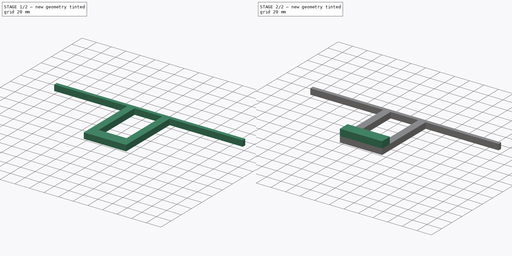
[diagram: build sequence overview — one tinted view per stage of 2, left to right]
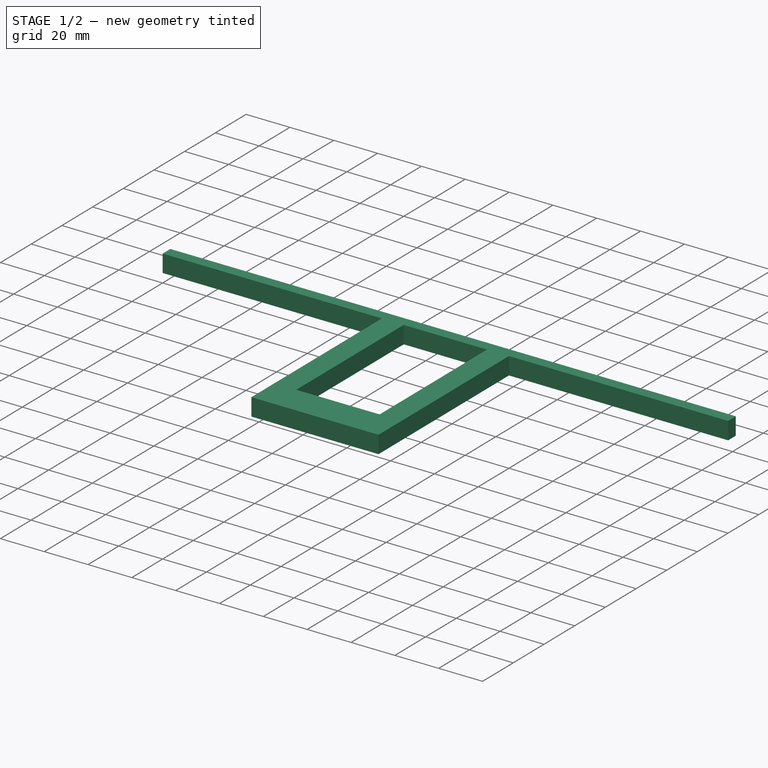
[diagram: stage 1 of 2 — iso view after this stage's code; geometry added in this stage tinted green]
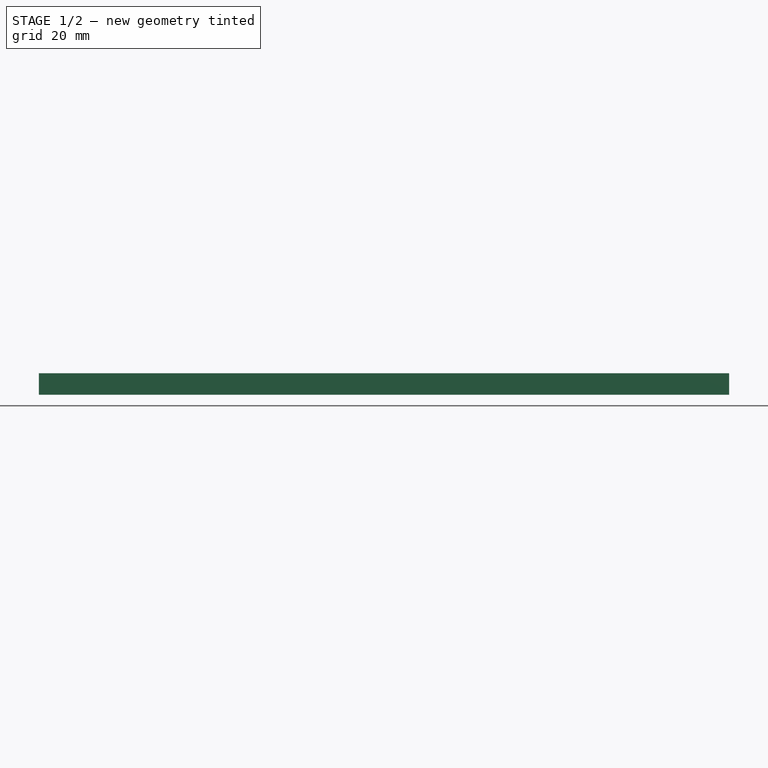
[diagram: stage 1 of 2 — front view after this stage's code; geometry added in this stage tinted green]
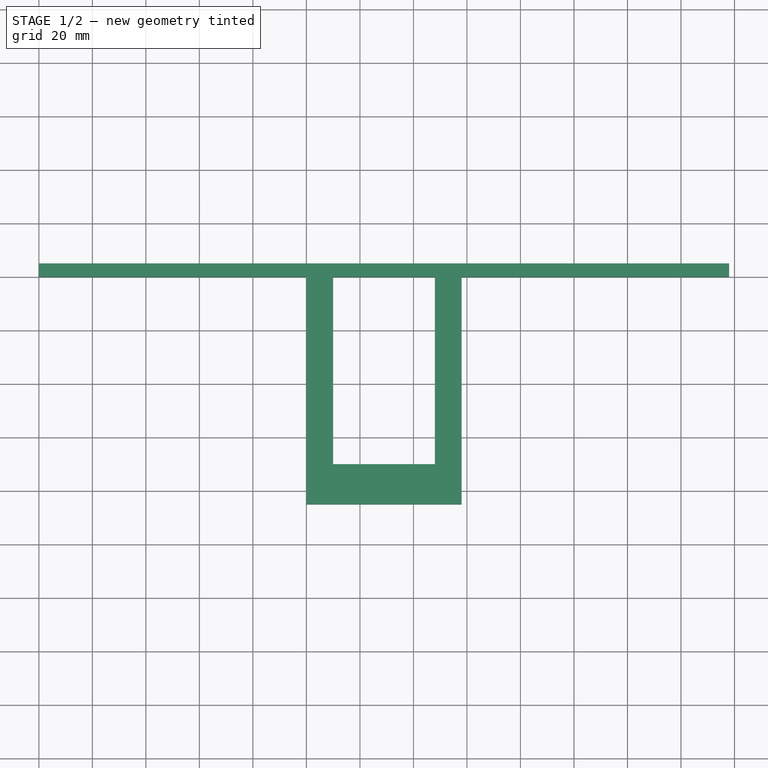
[diagram: stage 1 of 2 — top view after this stage's code; geometry added in this stage tinted green]
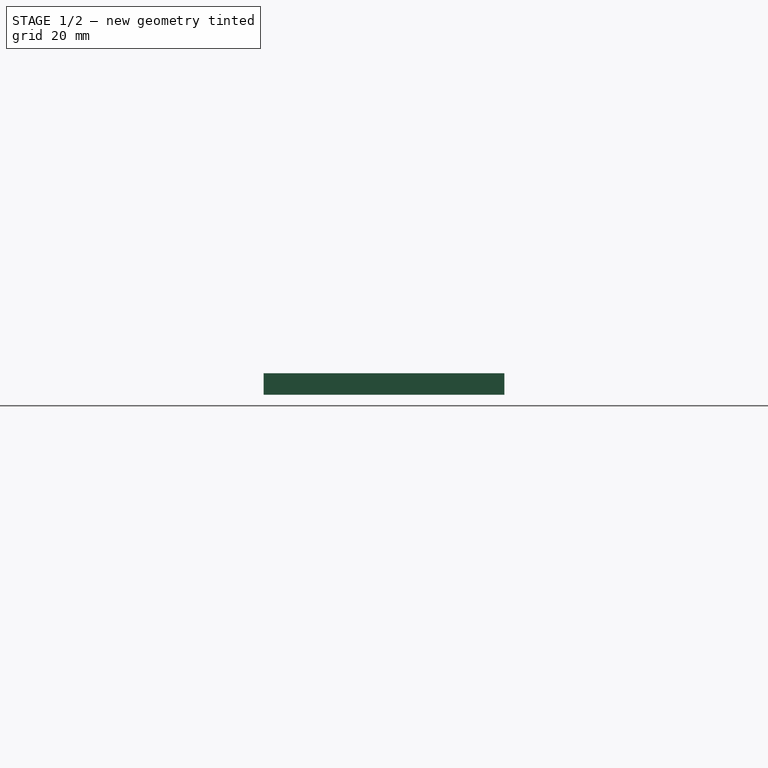
[diagram: stage 1 of 2 — right view after this stage's code; geometry added in this stage tinted green]
FCSTD DOCUMENT  (FreeCAD 0.20R29177 (Git))
Label: SolarPanelSupports_v1
License: All rights reserved
LicenseURL: http://en.wikipedia.org/wiki/All_rights_reserved
objects: Sketcher::SketchObject×2, PartDesign::Pad×2, PartDesign::Body×1, App::Part×1
note: 7 computed .brp shape members not serialized (recipe doc carries the construction recipe); baked Part::Feature solids carry a one-line shape summary decoded from their .brp

FEATURE [Sketcher::SketchObject] Sketch
  FullyConstrained = true
  MapMode = 5
  Support = -> [XY_Plane001]
  sketch-geometry (18):
    g0: LineSegment StartX=258 StartY=0 StartZ=0 EndX=258 EndY=5 EndZ=0
    g1: LineSegment StartX=258 StartY=5 StartZ=0 EndX=0 EndY=5 EndZ=0
    g2: LineSegment StartX=0 StartY=5 StartZ=0 EndX=0 EndY=0 EndZ=0
    g3: LineSegment StartX=100 StartY=0 StartZ=0 EndX=110 EndY=0 EndZ=0
    g4: LineSegment StartX=110 StartY=-85 StartZ=0 EndX=100 EndY=-85 EndZ=0
    g5: LineSegment StartX=100 StartY=-85 StartZ=0 EndX=100 EndY=0 EndZ=0
    g6: LineSegment StartX=158 StartY=0 StartZ=0 EndX=148 EndY=0 EndZ=0
    g7: LineSegment StartX=148 StartY=-85 StartZ=0 EndX=158 EndY=-85 EndZ=0
    g8: LineSegment StartX=158 StartY=-85 StartZ=0 EndX=158 EndY=0 EndZ=0
    g9: LineSegment StartX=0 StartY=0 StartZ=0 EndX=100 EndY=0 EndZ=0
    g10: LineSegment StartX=110 StartY=0 StartZ=0 EndX=148 EndY=0 EndZ=0
    g11: LineSegment StartX=158 StartY=0 StartZ=0 EndX=258 EndY=0 EndZ=0
    g12: LineSegment StartX=110 StartY=-85 StartZ=0 EndX=148 EndY=-85 EndZ=0
    g13: LineSegment StartX=148 StartY=-85 StartZ=0 EndX=148 EndY=-70 EndZ=0
    g14: LineSegment StartX=148 StartY=-70 StartZ=0 EndX=110 EndY=-70 EndZ=0
    g15: LineSegment StartX=110 StartY=-70 StartZ=0 EndX=110 EndY=-85 EndZ=0
    g16: LineSegment StartX=110 StartY=-70 StartZ=0 EndX=110 EndY=0 EndZ=0
    g17: LineSegment StartX=148 StartY=0 StartZ=0 EndX=148 EndY=-70 EndZ=0
  constraints (50):
    c: Coincident(g0,g1)
    c: Coincident(g1,g2)
    c: Horizontal(g1)
    c: Vertical(g0)
    c: Vertical(g2)
    c: Coincident(g4,g5)
    c: Coincident(g5,g3)
    c: Horizontal(g3)
    c: Horizontal(g4)
    c: Vertical(g5)
    c: Coincident(g7,g8)
    c: Coincident(g8,g6)
    c: Horizontal(g6)
    c: Horizontal(g7)
    c: Vertical(g8)
    c: DistanceY(g2,g2) = 5
    c: DistanceX(g4,g4) = 10
    c: Equal(g4,g7)
    c: Horizontal(g4,g7)
    c: DistanceX(g1,g1) = 258
    c: Coincident(g9,g2)
    c: Coincident(g9,g3)
    c: Horizontal(g9)
    c: DistanceX(g9,g9) = 100
    c: Coincident(g10,g3)
    c: Coincident(g10,g6)
    c: Horizontal(g10)
    c: DistanceX(g3,g6) = 58
    c: Coincident(g-1,g2)
    c: DistanceY(g5,g5) = 85
    c: Coincident(g11,g8)
    c: Coincident(g11,g0)
    c: Horizontal(g11)
    c: Equal(g11,g9)
    c: Coincident(g12,g13)
    c: Coincident(g13,g14)
    c: Coincident(g14,g15)
    c: Coincident(g15,g12)
    c: Horizontal(g14)
    c: Vertical(g13)
    c: Vertical(g15)
    c: DistanceY(g13,g13) = 15
    c: Coincident(g16,g14)
    c: Coincident(g16,g10)
    c: Vertical(g16)
    c: Coincident(g17,g10)
    c: Coincident(g17,g13)
    c: Vertical(g17)
    c: Coincident(g4,g12)
    c: Coincident(g7,g12)
FEATURE [PartDesign::Pad] Pad
  Direction = (0,0,1)
  Length = 8
  Length2 = 10
  Profile = -> Sketch
  ReferenceAxis = -> Sketch [N_Axis]
  Type = 0
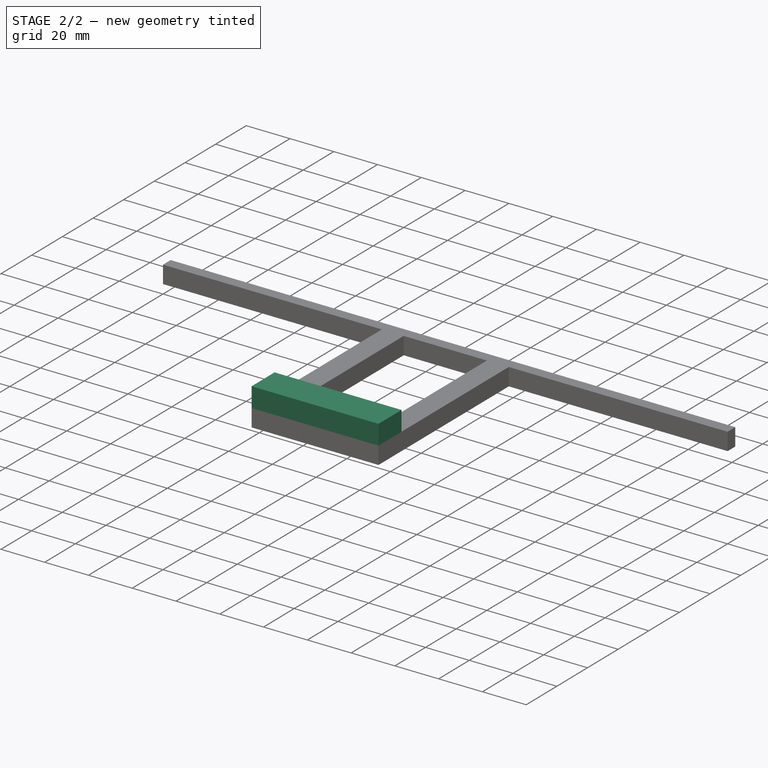
[diagram: stage 2 of 2 — iso view after this stage's code; geometry added in this stage tinted green]
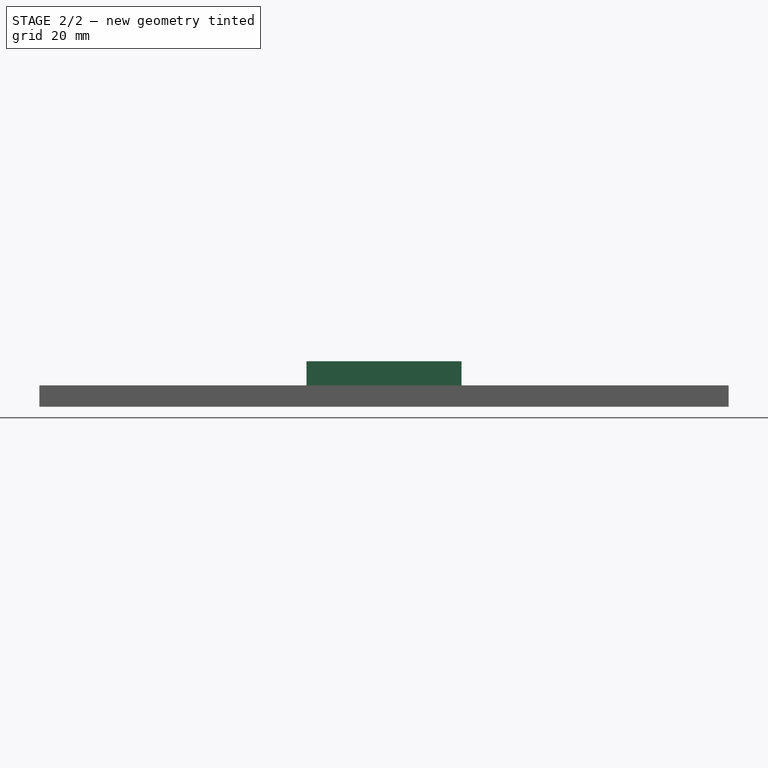
[diagram: stage 2 of 2 — front view after this stage's code; geometry added in this stage tinted green]
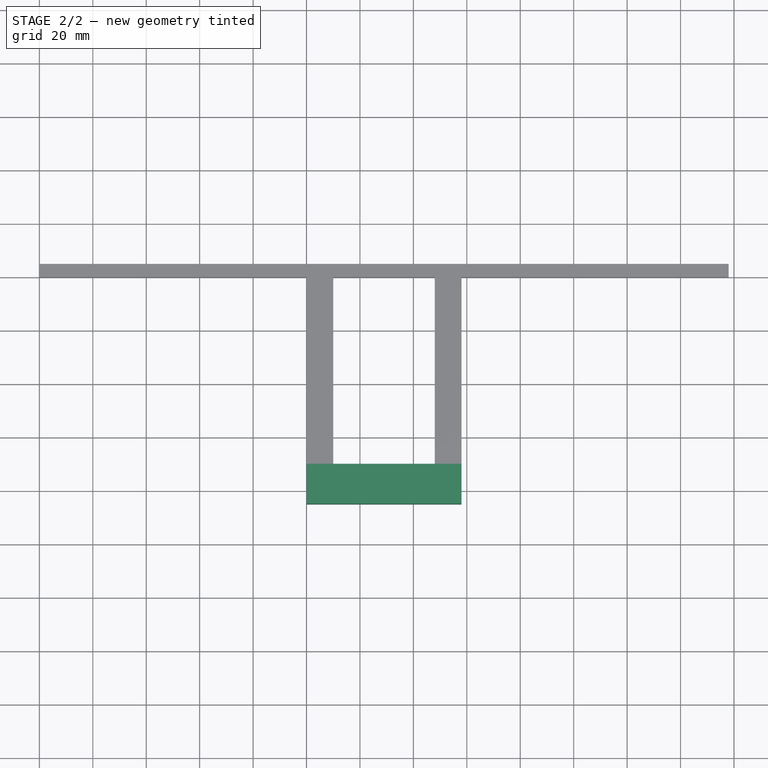
[diagram: stage 2 of 2 — top view after this stage's code; geometry added in this stage tinted green]
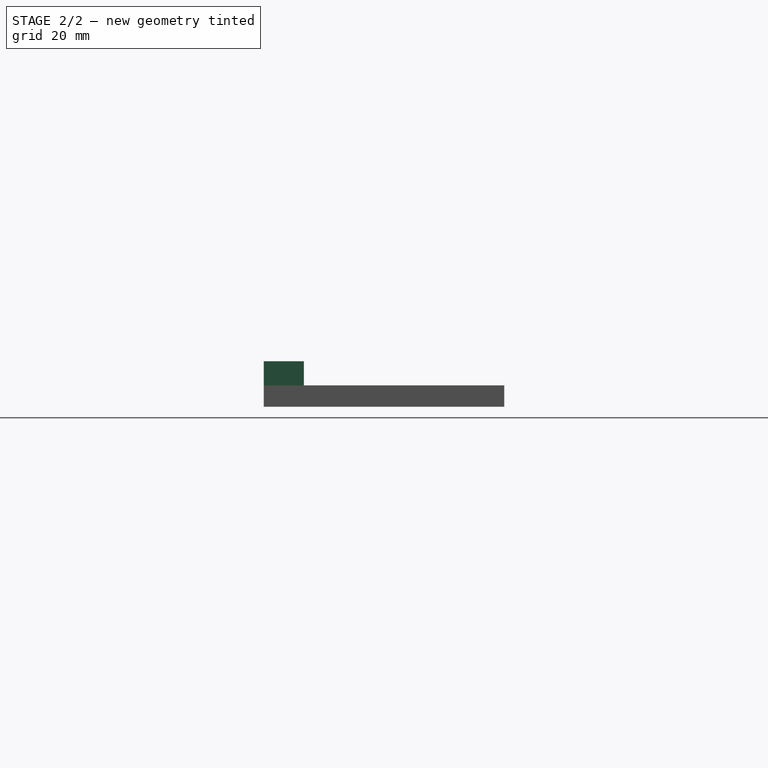
[diagram: stage 2 of 2 — right view after this stage's code; geometry added in this stage tinted green]
FEATURE [Sketcher::SketchObject] Sketch001
  ExternalGeometry = -> [Pad]
  FullyConstrained = true
  MapMode = 5
  Placement = pos=(0,0,8) rot=(0,0,1;0rad)
  Support = -> [Pad]
  sketch-geometry (4):
    g0: LineSegment StartX=100 StartY=-85 StartZ=0 EndX=158 EndY=-85 EndZ=0
    g1: LineSegment StartX=158 StartY=-85 StartZ=0 EndX=158 EndY=-70 EndZ=0
    g2: LineSegment StartX=158 StartY=-70 StartZ=0 EndX=100 EndY=-70 EndZ=0
    g3: LineSegment StartX=100 StartY=-70 StartZ=0 EndX=100 EndY=-85 EndZ=0
  constraints (10):
    c: Coincident(g0,g1)
    c: Coincident(g1,g2)
    c: Coincident(g2,g3)
    c: Coincident(g3,g0)
    c: Horizontal(g2)
    c: Vertical(g1)
    c: Vertical(g3)
    c: Coincident(g0,g-4)
    c: PointOnObject(g-3,g2)
    c: Coincident(g0,g-5)
FEATURE [PartDesign::Pad] Pad001
  BaseFeature = -> Pad
  Direction = (0,0,1)
  Length = 9
  Length2 = 10
  Profile = -> Sketch001
  ReferenceAxis = -> Sketch001 [N_Axis]
  Type = 0
FEATURE [PartDesign::Body] Body
  Group = -> [Sketch,Pad,Sketch001,Pad001]
  Origin = -> Origin001
  Tip = -> Pad001
FEATURE [App::Part] Part  label="SolarPanelRearSupport"
  Group = -> [Body]
  Origin = -> Origin
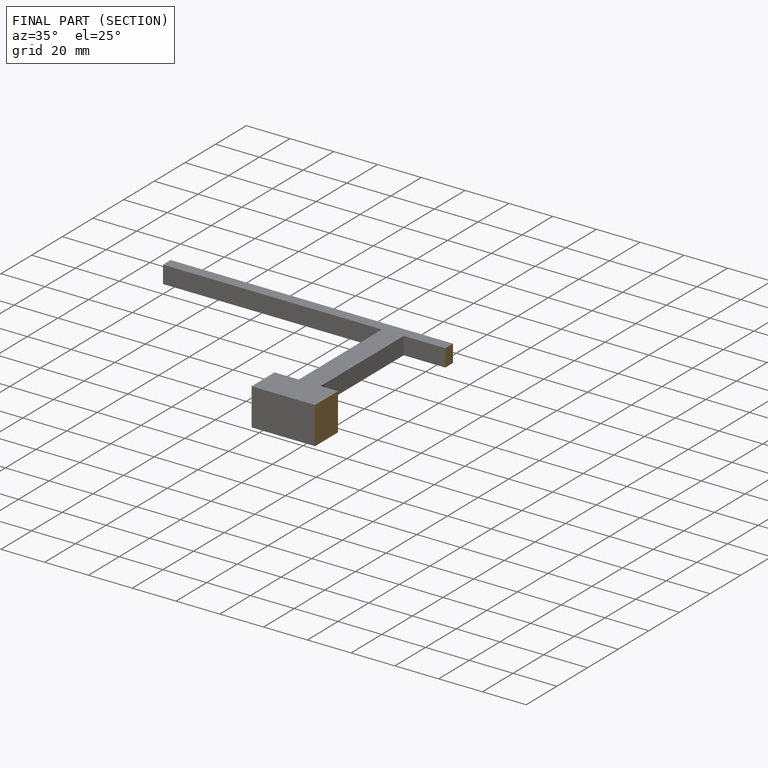
[diagram: finished part — half-section view (interior)]
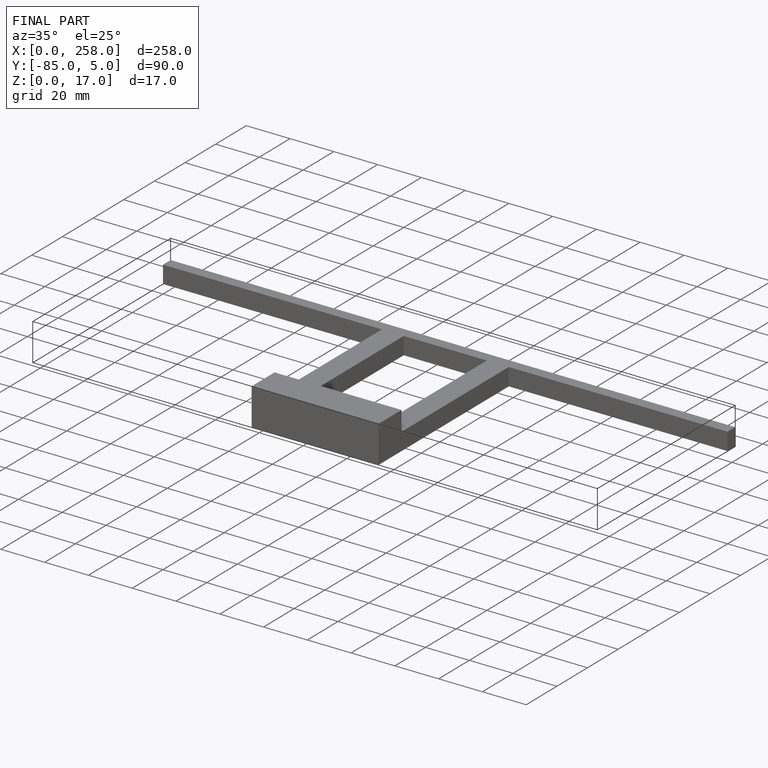
[diagram: finished part — iso view with bounding-box wireframe]
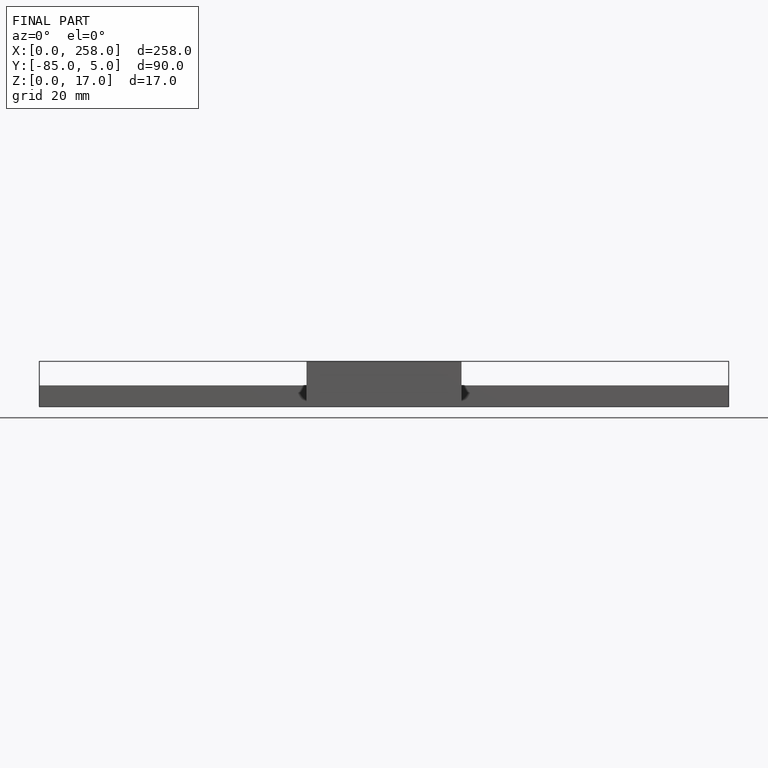
[diagram: finished part — front view with bounding-box wireframe]
